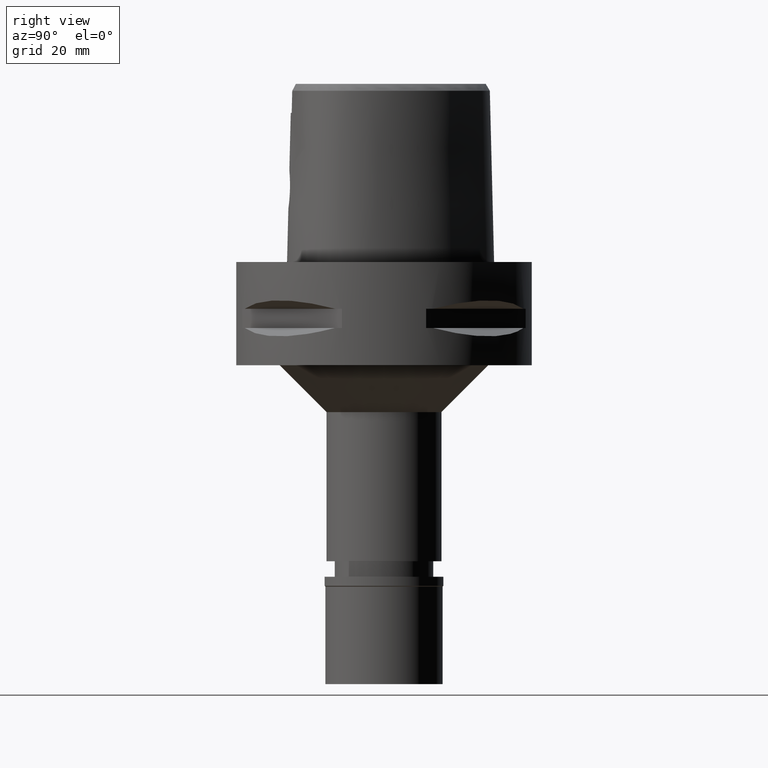
[diagram: clean part render]
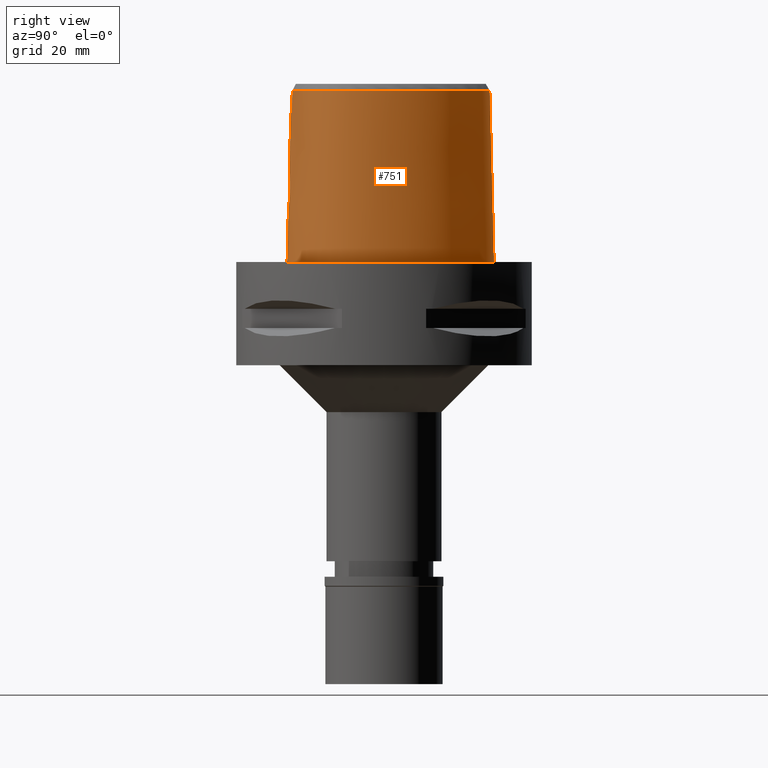
[diagram: same view with one face highlighted and labeled with its STEP entity id]
A machine part, right view. The second image highlights one B-rep face of the part: STEP entity #751.
In plain terms, the highlighted face is a freeform B-spline surface patch.
Its self-contained STEP definition (entity closure, byte-faithful):
#6 = CARTESIAN_POINT ( 'NONE',  ( 3.560427919826270049, -20.05783566392383932, 17.44838165235804439 ) ) ;
#7 = LINE ( 'NONE', #360, #1698 ) ;
#14 = CARTESIAN_POINT ( 'NONE',  ( 7.580410840576000453, 21.33037926361999936, -0.7304377127015999616 ) ) ;
#51 = B_SPLINE_CURVE_WITH_KNOTS ( 'NONE', 3,
 ( #609, #1398, #2149, #3215 ),
 .UNSPECIFIED., .F., .F.,
 ( 4, 4 ),
 ( 0.0000000000000000000, 1.000000000000000000 ),
 .UNSPECIFIED. ) ;
#56 = CARTESIAN_POINT ( 'NONE',  ( 3.671249151389730514, -19.60525176641679579, 34.94790639287000289 ) ) ;
#95 = VERTEX_POINT ( 'NONE', #398 ) ;
#138 = CARTESIAN_POINT ( 'NONE',  ( 18.90964962508163438, -12.28759713487269778, 36.52186680739951896 ) ) ;
#140 = CARTESIAN_POINT ( 'NONE',  ( 3.685510676559464294, -20.13532576923010353, 13.82052167447190349 ) ) ;
#172 = CARTESIAN_POINT ( 'NONE',  ( 1.318290243116415628, -20.35869268791108766, 11.66949536656400177 ) ) ;
#174 = CARTESIAN_POINT ( 'NONE',  ( 11.13012655352999936, -18.61140115486000468, 11.93048264079000020 ) ) ;
#196 = CARTESIAN_POINT ( 'NONE',  ( 14.52531262987000105, -16.95413747670999882, 11.93048264079000020 ) ) ;
#216 = CARTESIAN_POINT ( 'NONE',  ( 1.430622834923569009, -20.35322177505222996, 11.71082097673825473 ) ) ;
#245 = CARTESIAN_POINT ( 'NONE',  ( -0.4479923888923000308, -20.05810137359999956, 24.59140299429000009 ) ) ;
#279 = CARTESIAN_POINT ( 'NONE',  ( 2.113823673617677201, -20.67500000926077774, -3.706362569557297868E-07 ) ) ;
#297 = CARTESIAN_POINT ( 'NONE',  ( 10.55288405166999866, 18.94467586674999993, 11.93048264079000020 ) ) ;
#311 = CARTESIAN_POINT ( 'NONE',  ( 3.266496055312035462, -20.07523753042037384, 17.89878909391755002 ) ) ;
#319 = CARTESIAN_POINT ( 'NONE',  ( 21.44619293644000280, -6.759806551348999548, 24.59140299429000009 ) ) ;
#335 = CARTESIAN_POINT ( 'NONE',  ( 3.829354060569667428, -20.04432063893699123, 16.82161065392138966 ) ) ;
#343 = CARTESIAN_POINT ( 'NONE',  ( 2.438150600889999797, 22.68791638106999997, 24.59140299429000009 ) ) ;
#359 = CARTESIAN_POINT ( 'NONE',  ( 2.773210120156945457, -20.10385260638505045, 18.45456291583422725 ) ) ;
#360 = CARTESIAN_POINT ( 'NONE',  ( -1.574543175628000215E-11, 22.56201468012000078, 36.52186680743999858 ) ) ;
#366 = CARTESIAN_POINT ( 'NONE',  ( 10.34823236464999852, 18.70095497535000106, 24.59140299429000009 ) ) ;
#381 = CARTESIAN_POINT ( 'NONE',  ( 2.964456596452333503, -20.09288885982151029, 18.25993572930340036 ) ) ;
#390 = CARTESIAN_POINT ( 'NONE',  ( 21.26836741570999578, -8.910752245590000342, 11.93048264079000020 ) ) ;
#391 = VERTEX_POINT ( 'NONE', #2877 ) ;
#398 = CARTESIAN_POINT ( 'NONE',  ( -1.131694550467999927E-11, -20.67499999999999716, 1.488068927338999721E-13 ) ) ;
#409 = CARTESIAN_POINT ( 'NONE',  ( 18.06826689333558278, 10.43171875465824172, -3.706362569557298398E-07 ) ) ;
#410 = CARTESIAN_POINT ( 'NONE',  ( 1.674887392356037674, -20.15534369453145658, 19.18759917927871328 ) ) ;
#439 = VERTEX_POINT ( 'NONE', #1823 ) ;
#485 = VECTOR ( 'NONE', #4844, 1000.000000000000114 ) ;
#493 = CARTESIAN_POINT ( 'NONE',  ( -0.7217521648208999885, 23.47150798779000169, -0.7304377127015999616 ) ) ;
#500 = CARTESIAN_POINT ( 'NONE',  ( 2.841971434592522439, -20.24465931093810767, 12.61455390699043555 ) ) ;
#522 = CARTESIAN_POINT ( 'NONE',  ( 2.041042029990999821E-08, -19.88004246002000031, 31.80000004972000127 ) ) ;
#545 = CARTESIAN_POINT ( 'NONE',  ( 1.945304712137773340, -20.32321433943016231, 11.93793242183191694 ) ) ;
#547 = EDGE_LOOP ( 'NONE', ( #2650, #1135, #4311, #4013, #1394, #2211, #3634, #1532 ) ) ;
#601 = CARTESIAN_POINT ( 'NONE',  ( 2.712480348882689629, -20.25796393994375677, 12.49227042327419923 ) ) ;
#603 = CARTESIAN_POINT ( 'NONE',  ( 16.38077685640000070, -14.94316451564000126, 37.25232334778000620 ) ) ;
#609 = CARTESIAN_POINT ( 'NONE',  ( 3.736696120837999402, -19.67778323291999953, 31.80000004972999861 ) ) ;
#619 = CARTESIAN_POINT ( 'NONE',  ( -1.574543175628000215E-11, 22.56201468012000078, 36.52186680743999858 ) ) ;
#622 = CARTESIAN_POINT ( 'NONE',  ( -0.6718836833844000767, -20.05378849219999893, 24.59140299429000009 ) ) ;
#647 = FACE_OUTER_BOUND ( 'NONE', #547, .T. ) ;
#654 = CARTESIAN_POINT ( 'NONE',  ( 20.93173253059621786, -10.60431641002068304, -3.706362569557298398E-07 ) ) ;
#690 = CARTESIAN_POINT ( 'NONE',  ( 4.050227064633540763, -20.04605717389221908, 15.75144511807544845 ) ) ;
#696 = CARTESIAN_POINT ( 'NONE',  ( 21.05621899388000173, -0.4440251798498000002, 37.25232334778000620 ) ) ;
#713 = CARTESIAN_POINT ( 'NONE',  ( 3.080945359576436449, -20.08613096161498035, 18.12987642075779604 ) ) ;
#719 = CARTESIAN_POINT ( 'NONE',  ( 3.637738219117000238, -19.56971420299000286, 36.52185956443999970 ) ) ;
#723 = CARTESIAN_POINT ( 'NONE',  ( 17.88993648361000055, -13.52675013630999779, 37.25232334778000620 ) ) ;
#745 = CARTESIAN_POINT ( 'NONE',  ( 6.839695464753724994E-09, -20.08420636276293436, 23.63333344114103340 ) ) ;
#750 = CARTESIAN_POINT ( 'NONE',  ( 17.25769845519000256, 9.963736500069000357, 37.25232334778000620 ) ) ;
#751 = ADVANCED_FACE ( 'NONE', ( #647 ), #2102, .T. ) ;
#771 = CARTESIAN_POINT ( 'NONE',  ( 19.81622822285000041, -11.44090469762000062, 24.59140299429000009 ) ) ;
#788 = CARTESIAN_POINT ( 'NONE',  ( 2.520914726587768939, -20.11734872537601859, 18.67047284167710330 ) ) ;
#881 = CARTESIAN_POINT ( 'NONE',  ( 1.486612401983323561, -20.35034482949713563, 11.73264004643172065 ) ) ;
#904 = CARTESIAN_POINT ( 'NONE',  ( 20.09619608768714727, -10.23243839430306323, 36.52186680739951896 ) ) ;
#908 = CARTESIAN_POINT ( 'NONE',  ( 3.643280868489505053, -20.14206358275131947, 13.72887037703092261 ) ) ;
#931 = CARTESIAN_POINT ( 'NONE',  ( 21.32871516739908202, -4.105831245034556432, 36.52186680739951896 ) ) ;
#958 = CARTESIAN_POINT ( 'NONE',  ( 1.886855603313999818, -20.71358919621999917, -0.7304377127015999616 ) ) ;
#977 = EDGE_CURVE ( 'NONE', #2526, #3154, #3052, .T. ) ;
#1002 = EDGE_CURVE ( 'NONE', #1686, #391, #7, .T. ) ;
#1011 = CARTESIAN_POINT ( 'NONE',  ( 18.58171406647000268, -14.18198046606999974, -0.7304377127015999616 ) ) ;
#1029 = VERTEX_POINT ( 'NONE', #1054 ) ;
#1038 = CARTESIAN_POINT ( 'NONE',  ( 6.341471020858127083, -20.29812500917696383, -3.706362569557298927E-07 ) ) ;
#1054 = CARTESIAN_POINT ( 'NONE',  ( 3.736696120837999402, -19.67778323291999953, 31.80000004972999861 ) ) ;
#1081 = CARTESIAN_POINT ( 'NONE',  ( 17.80867307433000235, 10.28184208172000069, 11.93048264079000020 ) ) ;
#1097 = CARTESIAN_POINT ( 'NONE',  ( 1.855918559647546484, -20.14851752197398582, 19.10034405336992691 ) ) ;
#1104 = CARTESIAN_POINT ( 'NONE',  ( 13.69241970466999980, 15.03666384383999954, 37.25232334778000620 ) ) ;
#1130 = CARTESIAN_POINT ( 'NONE',  ( 7.099337716889999150, 20.50831380533999848, 37.25232334778000620 ) ) ;
#1135 = ORIENTED_EDGE ( 'NONE', *, *, #4826, .T. ) ;
#1157 = CARTESIAN_POINT ( 'NONE',  ( 10.14358067763999927, 18.45723408394000131, 37.25232334778000620 ) ) ;
#1173 = CARTESIAN_POINT ( 'NONE',  ( 4.044827519994394827, -20.05860776861394612, 15.27926280281562477 ) ) ;
#1179 = CARTESIAN_POINT ( 'NONE',  ( 20.07948491964999960, -10.22500063852000096, 37.25232334778000620 ) ) ;
#1277 = CARTESIAN_POINT ( 'NONE',  ( 2.564517728860519430, 23.29328125912352121, -3.706362569557298398E-07 ) ) ;
#1280 = B_SPLINE_CURVE_WITH_KNOTS ( 'NONE', 3,
 ( #3233, #1659, #2117, #2088, #3609, #3633, #172, #216, #881, #4783, #1764, #2400, #1362, #545, #2885, #2501, #4038, #4312, #601, #2141, #3927, #1716, #500, #1339, #2858, #2038, #3556, #3182, #4708, #2809, #4340, #908, #140, #3206, #2249, #2665, #3841, #1543, #2690, #4200, #1173, #1924, #4126, #2611, #690, #3372, #1880, #2226, #1516, #335, #4870, #2639, #3397, #3741, #2272, #1902, #6, #4577, #311, #4150, #713, #1854, #381, #3047, #3074, #4224, #2998, #359, #1953, #788, #4898, #4531, #1477, #2317, #4598, #1097, #3769, #410, #3790, #4921, #1495, #3439, #3019 ),
 .UNSPECIFIED., .F., .F.,
 ( 4, 2, 2, 1, 1, 1, 2, 2, 2, 2, 2, 1, 1, 2, 2, 2, 2, 2, 1, 2, 2, 2, 2, 1, 2, 2, 2, 2, 1, 1, 1, 2, 2, 2, 2, 2, 1, 1, 2, 2, 2, 2, 2, 2, 1, 2, 2, 4 ),
 ( 0.0000000000000000000, 0.06250000000000779932, 0.09375000000001161571, 0.1093750000000135170, 0.1171875000000144884, 0.1210937500000149603, 0.1230468750000151407, 0.1250000000000153211, 0.1875000000000161815, 0.2187500000000164868, 0.2343750000000167644, 0.2421875000000169309, 0.2460937500000169864, 0.2480468750000170419, 0.2500000000000170974, 0.2812500000000201505, 0.3125000000000232037, 0.3437500000000263123, 0.3593750000000279776, 0.3671875000000288103, 0.3750000000000296985, 0.4375000000000356382, 0.4687500000000384692, 0.4843750000000396350, 0.4921875000000401901, 0.5000000000000407452, 0.5625000000000482947, 0.5937500000000516254, 0.6093750000000534017, 0.6171875000000542899, 0.6210937500000542899, 0.6230468750000542899, 0.6250000000000542899, 0.6875000000000549560, 0.7187500000000552891, 0.7343750000000556222, 0.7421875000000560663, 0.7460937500000563993, 0.7480468750000565104, 0.7500000000000566214, 0.7812500000000502931, 0.7968750000000469624, 0.8125000000000435207, 0.8437500000000365263, 0.8593750000000333067, 0.8671875000000316414, 0.8750000000000298650, 1.000000000000000000 ),
 .UNSPECIFIED. ) ;
#1314 = CARTESIAN_POINT ( 'NONE',  ( 2.376843874104179744, 22.39422497744979168, 36.52186680739951896 ) ) ;
#1339 = CARTESIAN_POINT ( 'NONE',  ( 2.850410626714727780, -20.24376332189658001, 12.62289587933795865 ) ) ;
#1341 = CARTESIAN_POINT ( 'NONE',  ( -0.4561077449837999676, -20.69106755703000289, -0.7304377127015999616 ) ) ;
#1350 = CARTESIAN_POINT ( 'NONE',  ( -1.131694550467999927E-11, -20.67499999999999716, 1.488068927338999721E-13 ) ) ;
#1360 = CARTESIAN_POINT ( 'NONE',  ( 17.27359236348804572, 9.972912859139619002, 36.52186680739951896 ) ) ;
#1362 = CARTESIAN_POINT ( 'NONE',  ( 1.733127627898181533, -20.33705839681639205, 11.83376409685870456 ) ) ;
#1394 = ORIENTED_EDGE ( 'NONE', *, *, #977, .T. ) ;
#1398 = CARTESIAN_POINT ( 'NONE',  ( 2.503154195451056552, -19.81241979350802040, 31.80000012137771392 ) ) ;
#1418 = CARTESIAN_POINT ( 'NONE',  ( 19.64947366613950663, -12.82525391170535656, -3.706362569557298398E-07 ) ) ;
#1459 = CARTESIAN_POINT ( 'NONE',  ( 21.99640701676999655, -0.2778990160813999966, -0.7304377127015999616 ) ) ;
#1477 = CARTESIAN_POINT ( 'NONE',  ( 2.306638781912662139, -20.12825436215192809, 18.82958810261080629 ) ) ;
#1482 = CARTESIAN_POINT ( 'NONE',  ( 21.68301100913999946, -0.3332744040041999978, 11.93048264079000020 ) ) ;
#1495 = CARTESIAN_POINT ( 'NONE',  ( 1.027689602972268412, -20.17741232845817478, 19.45818698251686740 ) ) ;
#1496 = CARTESIAN_POINT ( 'NONE',  ( 0.0000000000000000000, -20.18628283968999781, 19.55000000000000071 ) ) ;
#1502 = CARTESIAN_POINT ( 'NONE',  ( 18.89485275539000142, -12.27684371673000108, 37.25232334778000620 ) ) ;
#1516 = CARTESIAN_POINT ( 'NONE',  ( 3.860874127255712107, -20.04326357303169104, 16.72502838322736807 ) ) ;
#1519 = CARTESIAN_POINT ( 'NONE',  ( 6.819707265817331304E-09, -19.98212988583487970, 27.71666688228189912 ) ) ;
#1525 = CARTESIAN_POINT ( 'NONE',  ( 21.31039820760999959, -4.105938497754999084, 37.25232334778000620 ) ) ;
#1532 = ORIENTED_EDGE ( 'NONE', *, *, #3021, .T. ) ;
#1543 = CARTESIAN_POINT ( 'NONE',  ( 4.002035053400216036, -20.07414867880186193, 14.86451737245610794 ) ) ;
#1551 = CARTESIAN_POINT ( 'NONE',  ( 7.259695424784999851, 20.78233562476000174, 24.59140299429000009 ) ) ;
#1568 = CARTESIAN_POINT ( 'NONE',  ( 5.098437020742769832, 22.52602539926908065, -3.706362569557298398E-07 ) ) ;
#1578 = EDGE_CURVE ( 'NONE', #2297, #95, #3318, .T. ) ;
#1654 = CARTESIAN_POINT ( 'NONE',  ( -1.574543175628000215E-11, 22.56201468012000078, 36.52186680743999858 ) ) ;
#1659 = CARTESIAN_POINT ( 'NONE',  ( 0.2516474774444192319, -20.38876923348000503, 11.44999999999999751 ) ) ;
#1679 = CARTESIAN_POINT ( 'NONE',  ( -0.6834384062705000096, 22.83968690454999972, 24.59140299429000009 ) ) ;
#1681 = CARTESIAN_POINT ( 'NONE',  ( 17.90324024157230909, -13.53935104436580872, 36.52186680739951896 ) ) ;
#1686 = VERTEX_POINT ( 'NONE', #1654 ) ;
#1698 = VECTOR ( 'NONE', #4943, 1000.000000000000227 ) ;
#1716 = CARTESIAN_POINT ( 'NONE',  ( 2.827631256043765529, -20.24617244783797076, 12.60049965156953000 ) ) ;
#1737 = B_SPLINE_CURVE_WITH_KNOTS ( 'NONE', 3,
 ( #619, #2059, #1314, #2427, #2833, #4782, #3180, #1360, #2521, #2882, #931, #4411, #4336, #904, #3577, #138, #1681, #4733, #4360, #1830, #4535, #3349, #719 ),
 .UNSPECIFIED., .F., .F.,
 ( 4, 1, 1, 1, 1, 1, 1, 1, 1, 1, 1, 1, 1, 1, 1, 1, 1, 1, 1, 1, 4 ),
 ( 0.0000000000000000000, 0.04382683003322301180, 0.08765366006602515192, 0.1314804900989326175, 0.1753073201318401109, 0.2629609801974445160, 0.3506146402631542536, 0.4382683003288638246, 0.5259219603945736177, 0.5697487904274809445, 0.6135756204602832442, 0.6574024504930854329, 0.6793158655094865273, 0.7012292805259929818, 0.7231426955423939651, 0.7450561105587950594, 0.7888829405917024973, 0.8327097706246100461, 0.8765366006573070967, 0.9641902607230797839, 1.000000000000000000 ),
 .UNSPECIFIED. ) ;
#1764 = CARTESIAN_POINT ( 'NONE',  ( 1.526526126156138474, -20.34823259897835257, 11.74869461639786472 ) ) ;
#1766 = CARTESIAN_POINT ( 'NONE',  ( 6.232237578930000410, -19.68961176701999705, 24.59140299429000009 ) ) ;
#1819 = CARTESIAN_POINT ( 'NONE',  ( 11.23259757045801166, -18.89324219624920786, -3.706362569557298398E-07 ) ) ;
#1823 = CARTESIAN_POINT ( 'NONE',  ( 3.637738219117000238, -19.56971420299000286, 36.52185956443999970 ) ) ;
#1830 = CARTESIAN_POINT ( 'NONE',  ( 10.91891095220704244, -18.03046396093424164, 36.52186680739951896 ) ) ;
#1832 = CARTESIAN_POINT ( 'NONE',  ( 18.12052901122999771, -13.74516024622999844, 24.59140299429000009 ) ) ;
#1854 = CARTESIAN_POINT ( 'NONE',  ( 3.004003988406161341, -20.09059968545356156, 18.21660700358521368 ) ) ;
#1862 = CARTESIAN_POINT ( 'NONE',  ( -0.4812391254439000177, 23.48607176370000005, -0.7304377127015999616 ) ) ;
#1880 = CARTESIAN_POINT ( 'NONE',  ( 3.950640931117192167, -20.04134373120366064, 16.40136709842777307 ) ) ;
#1888 = CARTESIAN_POINT ( 'NONE',  ( 22.26285556620999984, -4.100361500044000351, -0.7304377127015999616 ) ) ;
#1902 = CARTESIAN_POINT ( 'NONE',  ( 3.664974095131715792, -20.05176572821117631, 17.23584209079355034 ) ) ;
#1907 = CARTESIAN_POINT ( 'NONE',  ( 14.42198652065999909, 15.65278600306999834, -0.7304377127015999616 ) ) ;
#1924 = CARTESIAN_POINT ( 'NONE',  ( 4.048119304271369678, -20.05584858367399193, 15.37274962943441459 ) ) ;
#1932 = CARTESIAN_POINT ( 'NONE',  ( 4.868968413250999383, 21.95285535513000141, 24.59140299429000009 ) ) ;
#1951 = CARTESIAN_POINT ( 'NONE',  ( 5.792621513410000046E-11, 23.47499999999000053, 1.460313351723999876E-13 ) ) ;
#1953 = CARTESIAN_POINT ( 'NONE',  ( 2.674783194802311304, -20.10923909173701674, 18.54395651331615724 ) ) ;
#1974 = CARTESIAN_POINT ( 'NONE',  ( 0.0000000000000000000, -20.18628283968999781, 19.55000000000000071 ) ) ;
#1979 = CARTESIAN_POINT ( 'NONE',  ( -0.6642815269952999646, 22.52377636293000052, 37.25232334778000620 ) ) ;
#2038 = CARTESIAN_POINT ( 'NONE',  ( 3.039944293244753126, -20.22303436384430952, 12.82065915368009890 ) ) ;
#2049 = B_SPLINE_CURVE_WITH_KNOTS ( 'NONE', 3,
 ( #1350, #279, #1038, #1819, #2936, #3335, #2199, #1418, #4466, #654, #2553, #4092, #3708, #3462, #4249, #409, #3942, #4327, #3093, #1568, #1277, #3168, #1951 ),
 .UNSPECIFIED., .F., .F.,
 ( 4, 1, 1, 1, 1, 1, 1, 1, 1, 1, 1, 1, 1, 1, 1, 1, 1, 1, 1, 1, 4 ),
 ( 0.0000000000000000000, 0.08333333333344000726, 0.1666666666668000230, 0.2083333333333000081, 0.2500000000000000000, 0.2916666666666999919, 0.3125000000000000000, 0.3333333333333000081, 0.3541666666666999919, 0.3750000000000000000, 0.4166666666666000163, 0.4583333333332000326, 0.4999999999998999689, 0.5833333333332000326, 0.6666666666664999852, 0.7499999999998000488, 0.8333333333329999704, 0.8749999999997000177, 0.9166666666664000651, 0.9583333333329999704, 1.000000000000000000 ),
 .UNSPECIFIED. ) ;
#2059 = CARTESIAN_POINT ( 'NONE',  ( 0.7901461619525469438, 22.56201467849633246, 36.52186680739951896 ) ) ;
#2088 = CARTESIAN_POINT ( 'NONE',  ( 0.8978660413949249852, -20.37497067493941572, 11.54857924112956624 ) ) ;
#2102 = B_SPLINE_SURFACE_WITH_KNOTS ( 'NONE', 3, 3, ( 
 ( #4487, #3656, #622, #2478 ),
 ( #1341, #2119, #245, #3309 ),
 ( #958, #2574, #4812, #4833 ),
 ( #3610, #2887, #1766, #4111 ),
 ( #3676, #174, #2859, #3635 ),
 ( #2913, #196, #3258, #4438 ),
 ( #2503, #4785, #4414, #603 ),
 ( #1011, #2166, #1832, #723 ),
 ( #3422, #3816, #4207, #1502 ),
 ( #4926, #3079, #771, #2253 ),
 ( #4604, #4538, #4185, #1179 ),
 ( #4906, #390, #3353, #2210 ),
 ( #2671, #3446, #319, #2648 ),
 ( #1888, #2298, #4878, #1525 ),
 ( #1459, #1482, #2982, #696 ),
 ( #4514, #3795, #2616, #3725 ),
 ( #4160, #1081, #4561, #750 ),
 ( #1907, #2597, #3003, #1104 ),
 ( #2276, #297, #366, #1157 ),
 ( #14, #4948, #1551, #1130 ),
 ( #4134, #2230, #1932, #3775 ),
 ( #2696, #3056, #343, #3404 ),
 ( #3027, #4230, #4583, #3747 ),
 ( #1862, #3379, #3552, #3153 ),
 ( #493, #3099, #1679, #1979 ) ),
 .UNSPECIFIED., .F., .F., .F.,
 ( 4, 1, 1, 1, 1, 1, 1, 1, 1, 1, 1, 1, 1, 1, 1, 1, 1, 1, 1, 1, 1, 1, 4 ),
 ( 4, 4 ),
 ( -0.008985960173604000401, 0.0000000000000000000, 0.08333333333344000726, 0.1666666666668000230, 0.2083333333333000081, 0.2500000000000000000, 0.2916666666666999919, 0.3125000000000000000, 0.3333333333333000081, 0.3541666666666999919, 0.3750000000000000000, 0.4166666666666000163, 0.4583333333332000326, 0.4999999999998999689, 0.5833333333332000326, 0.6666666666664999852, 0.7499999999998000488, 0.8333333333329999704, 0.8749999999997000177, 0.9166666666664000651, 0.9583333333329999704, 1.000000000000000000, 1.011710456763000199 ),
 ( 3.314704413725999748E-10, 0.9999999830951000757 ),
 .UNSPECIFIED. ) ;
#2117 = CARTESIAN_POINT ( 'NONE',  ( 0.5094443580571369479, -20.38531959384485148, 11.47352210812809226 ) ) ;
#2119 = CARTESIAN_POINT ( 'NONE',  ( -0.4520500669380000391, -20.37458446531000078, 11.93048264079000020 ) ) ;
#2141 = CARTESIAN_POINT ( 'NONE',  ( 2.755765615597805862, -20.25363130051434624, 12.53166855696492377 ) ) ;
#2149 = CARTESIAN_POINT ( 'NONE',  ( 1.251533272180900491, -19.88005341395322034, 31.80000012137771392 ) ) ;
#2166 = CARTESIAN_POINT ( 'NONE',  ( 18.35112153885000197, -13.96357035614999909, 11.93048264079000020 ) ) ;
#2199 = CARTESIAN_POINT ( 'NONE',  ( 18.56841065816537295, -14.16937988919912783, -3.706362569557298398E-07 ) ) ;
#2210 = CARTESIAN_POINT ( 'NONE',  ( 20.65947746028000154, -8.729764345923998192, 37.25232334778000620 ) ) ;
#2211 = ORIENTED_EDGE ( 'NONE', *, *, #2595, .F. ) ;
#2215 = CARTESIAN_POINT ( 'NONE',  ( -1.411580633884000040E-12, -20.38876923348000147, 11.44999999999999929 ) ) ;
#2226 = CARTESIAN_POINT ( 'NONE',  ( 3.918815742022559778, -20.04168401161763668, 16.53128921500082527 ) ) ;
#2227 = CARTESIAN_POINT ( 'NONE',  ( 2.041042029990999821E-08, -19.88004246002000031, 31.80000004972000127 ) ) ;
#2230 = CARTESIAN_POINT ( 'NONE',  ( 4.987110664832000495, 22.24795279915000279, 11.93048264079000020 ) ) ;
#2249 = CARTESIAN_POINT ( 'NONE',  ( 3.725635460763917273, -20.12877944838376010, 13.91147490174817847 ) ) ;
#2253 = CARTESIAN_POINT ( 'NONE',  ( 19.54161171135999808, -11.28235478018000038, 37.25232334778000620 ) ) ;
#2272 = CARTESIAN_POINT ( 'NONE',  ( 3.746243339493119162, -20.04791785474846222, 17.03889652797241183 ) ) ;
#2276 = CARTESIAN_POINT ( 'NONE',  ( 10.75753573869000057, 19.18839675815999968, -0.7304377127015999616 ) ) ;
#2297 = VERTEX_POINT ( 'NONE', #2215 ) ;
#2298 = CARTESIAN_POINT ( 'NONE',  ( 21.94536978001000094, -4.102220499280999633, 11.93048264079000020 ) ) ;
#2317 = CARTESIAN_POINT ( 'NONE',  ( 2.144305683767859350, -20.13626505368563357, 18.93822784987334629 ) ) ;
#2370 = CARTESIAN_POINT ( 'NONE',  ( 3.704239288984441103, -19.64128042389065598, 33.37395322129999897 ) ) ;
#2400 = CARTESIAN_POINT ( 'NONE',  ( 1.536513166970382205, -20.34769590664082273, 11.75277852158364666 ) ) ;
#2427 = CARTESIAN_POINT ( 'NONE',  ( 4.757642236485510878, 21.67478320248027046, 36.52186680739951896 ) ) ;
#2478 = CARTESIAN_POINT ( 'NONE',  ( -0.6657939532555999795, -19.73734215593000130, 37.25232334778000620 ) ) ;
#2501 = CARTESIAN_POINT ( 'NONE',  ( 2.395039263044265176, -20.28758620788289591, 12.23076825048378069 ) ) ;
#2503 = CARTESIAN_POINT ( 'NONE',  ( 16.97022731160999953, -15.69280483180000196, -0.7304377127015999616 ) ) ;
#2521 = CARTESIAN_POINT ( 'NONE',  ( 19.88562079789207004, 4.345879946636585167, 36.52186680739951896 ) ) ;
#2526 = VERTEX_POINT ( 'NONE', #522 ) ;
#2553 = CARTESIAN_POINT ( 'NONE',  ( 21.55524826901233837, -8.996025393274063475, -3.706362569557298398E-07 ) ) ;
#2574 = CARTESIAN_POINT ( 'NONE',  ( 1.870063861600999910, -20.39691450398999706, 11.93048264079000020 ) ) ;
#2595 = EDGE_CURVE ( 'NONE', #2297, #3154, #1280, .T. ) ;
#2597 = CARTESIAN_POINT ( 'NONE',  ( 14.17879758199999962, 15.44741194998999845, 11.93048264079000020 ) ) ;
#2611 = CARTESIAN_POINT ( 'NONE',  ( 4.049969785699616409, -20.05331009890886307, 15.46448438781077073 ) ) ;
#2616 = CARTESIAN_POINT ( 'NONE',  ( 20.16779732427999861, 4.447573639342000007, 24.59140299429000009 ) ) ;
#2639 = CARTESIAN_POINT ( 'NONE',  ( 3.766305380331977926, -20.04698906519095303, 16.98928058779668504 ) ) ;
#2648 = CARTESIAN_POINT ( 'NONE',  ( 21.13154875869999927, -6.714587059220999521, 37.25232334778000620 ) ) ;
#2650 = ORIENTED_EDGE ( 'NONE', *, *, #1002, .F. ) ;
#2665 = CARTESIAN_POINT ( 'NONE',  ( 3.848905249512932780, -20.10802803500427771, 14.20778905203764708 ) ) ;
#2671 = CARTESIAN_POINT ( 'NONE',  ( 22.07548129194000097, -6.850245535603000313, -0.7304377127015999616 ) ) ;
#2690 = CARTESIAN_POINT ( 'NONE',  ( 4.020256713815440364, -20.06874923333347738, 14.99366931076525233 ) ) ;
#2696 = CARTESIAN_POINT ( 'NONE',  ( 2.568271205948000180, 23.31126238471999912, -0.7304377127015999616 ) ) ;
#2809 = CARTESIAN_POINT ( 'NONE',  ( 3.503399607296684426, -20.16301088028431110, 13.46373199589919167 ) ) ;
#2833 = CARTESIAN_POINT ( 'NONE',  ( 7.108589361577901222, 20.52412316395011516, 36.52186680739951896 ) ) ;
#2858 = CARTESIAN_POINT ( 'NONE',  ( 2.950423299620006823, -20.23309605272527989, 12.72238753065452599 ) ) ;
#2859 = CARTESIAN_POINT ( 'NONE',  ( 11.02138180424999980, -18.31230454878999936, 24.59140299429000009 ) ) ;
#2877 = CARTESIAN_POINT ( 'NONE',  ( 5.792621513410000046E-11, 23.47499999999000053, 1.460313351723999876E-13 ) ) ;
#2882 = CARTESIAN_POINT ( 'NONE',  ( 21.07429999882363703, -0.4408303635840800094, 36.52186680739951896 ) ) ;
#2885 = CARTESIAN_POINT ( 'NONE',  ( 2.280553278468464118, -20.29715490883428330, 12.15050963463213485 ) ) ;
#2887 = CARTESIAN_POINT ( 'NONE',  ( 6.288476577886999763, -20.00290570876000018, 11.93048264079000020 ) ) ;
#2913 = CARTESIAN_POINT ( 'NONE',  ( 14.68244497159999895, -17.23001773102000200, -0.7304377127015999616 ) ) ;
#2936 = CARTESIAN_POINT ( 'NONE',  ( 14.67337964879238399, -17.21410157057825430, -3.706362569557298398E-07 ) ) ;
#2940 = EDGE_CURVE ( 'NONE', #1029, #2526, #51, .T. ) ;
#2942 = CARTESIAN_POINT ( 'NONE',  ( -1.411580633884000040E-12, -20.38876923348000147, 11.44999999999999929 ) ) ;
#2982 = CARTESIAN_POINT ( 'NONE',  ( 21.36961500151000237, -0.3886497919269999990, 24.59140299429000009 ) ) ;
#2998 = CARTESIAN_POINT ( 'NONE',  ( 2.872871899607042145, -20.09815064883976987, 18.35467615336887448 ) ) ;
#3003 = CARTESIAN_POINT ( 'NONE',  ( 13.93560864332999927, 15.24203789691000033, 24.59140299429000009 ) ) ;
#3019 = CARTESIAN_POINT ( 'NONE',  ( 0.0000000000000000000, -20.18628283968999781, 19.55000000000000071 ) ) ;
#3021 = EDGE_CURVE ( 'NONE', #95, #391, #2049, .T. ) ;
#3027 = CARTESIAN_POINT ( 'NONE',  ( 0.6155340740835999469, 23.51883497837000192, -0.7304377127015999616 ) ) ;
#3047 = CARTESIAN_POINT ( 'NONE',  ( 2.916385679761511529, -20.09565548503593746, 18.31031963169740706 ) ) ;
#3052 = B_SPLINE_CURVE_WITH_KNOTS ( 'NONE', 3,
 ( #2227, #1519, #745, #1496 ),
 .UNSPECIFIED., .F., .F.,
 ( 4, 4 ),
 ( 0.0000000000000000000, 1.000000000000000000 ),
 .UNSPECIFIED. ) ;
#3056 = CARTESIAN_POINT ( 'NONE',  ( 2.503210903418999767, 22.99958938290000177, 11.93048264079000020 ) ) ;
#3074 = CARTESIAN_POINT ( 'NONE',  ( 2.895364966236098958, -20.09686173622466043, 18.33186563308976602 ) ) ;
#3079 = CARTESIAN_POINT ( 'NONE',  ( 20.09084473435000007, -11.59945461505999909, 11.93048264079000020 ) ) ;
#3093 = CARTESIAN_POINT ( 'NONE',  ( 7.571159439045547224, 21.31457032052076173, -3.706362569557298398E-07 ) ) ;
#3099 = CARTESIAN_POINT ( 'NONE',  ( -0.7025952855457000545, 23.15559744616999538, 11.93048264079000020 ) ) ;
#3100 = CARTESIAN_POINT ( 'NONE',  ( 3.637738219117000238, -19.56971420299000286, 36.52185956443999970 ) ) ;
#3153 = CARTESIAN_POINT ( 'NONE',  ( -0.4431573377790999912, 22.53713867047000008, 37.25232334778000620 ) ) ;
#3154 = VERTEX_POINT ( 'NONE', #1974 ) ;
#3155 = CARTESIAN_POINT ( 'NONE',  ( 3.736696120837999402, -19.67778323291999953, 31.80000004972999861 ) ) ;
#3168 = CARTESIAN_POINT ( 'NONE',  ( 0.8548392429650701896, 23.47500000926667241, -3.706362569557298398E-07 ) ) ;
#3180 = CARTESIAN_POINT ( 'NONE',  ( 13.70645019738560677, 15.04851265230740509, 36.52186680739951896 ) ) ;
#3182 = CARTESIAN_POINT ( 'NONE',  ( 3.289550543119732051, -20.19259649272058610, 13.13390288946961704 ) ) ;
#3206 = CARTESIAN_POINT ( 'NONE',  ( 3.712956583703073132, -20.13087152724002138, 13.88210327879420625 ) ) ;
#3215 = CARTESIAN_POINT ( 'NONE',  ( 2.041042029990999821E-08, -19.88004246002000031, 31.80000004972000127 ) ) ;
#3233 = CARTESIAN_POINT ( 'NONE',  ( -1.411580633884000040E-12, -20.38876923348000147, 11.44999999999999929 ) ) ;
#3258 = CARTESIAN_POINT ( 'NONE',  ( 14.36818028813000048, -16.67825722241000008, 24.59140299429000009 ) ) ;
#3286 = B_SPLINE_CURVE_WITH_KNOTS ( 'NONE', 3,
 ( #3155, #2370, #56, #3100 ),
 .UNSPECIFIED., .F., .F.,
 ( 4, 4 ),
 ( 0.0000000000000000000, 1.000000000000000000 ),
 .UNSPECIFIED. ) ;
#3309 = CARTESIAN_POINT ( 'NONE',  ( -0.4439347108466000225, -19.74161828188000101, 37.25232334778000620 ) ) ;
#3318 = LINE ( 'NONE', #2942, #485 ) ;
#3335 = CARTESIAN_POINT ( 'NONE',  ( 16.95889173168474784, -15.67838867918921686, -3.706362569557298398E-07 ) ) ;
#3349 = CARTESIAN_POINT ( 'NONE',  ( 4.467522181836104167, -19.48130276147438522, 36.52186680739951896 ) ) ;
#3353 = CARTESIAN_POINT ( 'NONE',  ( 20.96392243800000088, -8.820258295757001932, 24.59140299429000009 ) ) ;
#3372 = CARTESIAN_POINT ( 'NONE',  ( 4.026288377238904204, -20.04246117154787754, 16.01147585895854419 ) ) ;
#3379 = CARTESIAN_POINT ( 'NONE',  ( -0.4685451962222999533, 23.16976073262000213, 11.93048264079000020 ) ) ;
#3397 = CARTESIAN_POINT ( 'NONE',  ( 3.756732854251331855, -20.04742873757864530, 17.01311984628703300 ) ) ;
#3404 = CARTESIAN_POINT ( 'NONE',  ( 2.373090298361999917, 22.37624337924999907, 37.25232334778000620 ) ) ;
#3422 = CARTESIAN_POINT ( 'NONE',  ( 19.66427014693000075, -12.83600704722000074, -0.7304377127015999616 ) ) ;
#3439 = CARTESIAN_POINT ( 'NONE',  ( 0.4946161667393146333, -20.18628283968999426, 19.54999999999999361 ) ) ;
#3446 = CARTESIAN_POINT ( 'NONE',  ( 21.76083711419000011, -6.805026043476000375, 11.93048264079000020 ) ) ;
#3462 = CARTESIAN_POINT ( 'NONE',  ( 21.97832648704262937, -0.2810937483789625602, -3.706362569557298398E-07 ) ) ;
#3552 = CARTESIAN_POINT ( 'NONE',  ( -0.4558512670007000001, 22.85344970154000066, 24.59140299429000009 ) ) ;
#3556 = CARTESIAN_POINT ( 'NONE',  ( 3.208904454698072950, -20.20286717381936370, 13.02551805878312408 ) ) ;
#3577 = CARTESIAN_POINT ( 'NONE',  ( 19.55745538001234607, -11.29150212657641816, 36.52186680739951896 ) ) ;
#3609 = CARTESIAN_POINT ( 'NONE',  ( 1.027607996733898910, -20.37065862539548888, 11.58021460147264037 ) ) ;
#3610 = CARTESIAN_POINT ( 'NONE',  ( 6.344715576844000005, -20.31619965048999887, -0.7304377127015999616 ) ) ;
#3633 = CARTESIAN_POINT ( 'NONE',  ( 1.221514972066057192, -20.36289693621641561, 11.63801215507047893 ) ) ;
#3634 = ORIENTED_EDGE ( 'NONE', *, *, #1578, .T. ) ;
#3635 = CARTESIAN_POINT ( 'NONE',  ( 10.91263705495999936, -18.01320794273000203, 37.25232334778000620 ) ) ;
#3656 = CARTESIAN_POINT ( 'NONE',  ( -0.6779734135132999828, -20.37023482847000011, 11.93048264079000020 ) ) ;
#3676 = CARTESIAN_POINT ( 'NONE',  ( 11.23887130281000069, -18.91049776091999846, -0.7304377127015999616 ) ) ;
#3708 = CARTESIAN_POINT ( 'NONE',  ( 22.24453908783870304, -4.100468749945560987, -3.706362569557298398E-07 ) ) ;
#3725 = CARTESIAN_POINT ( 'NONE',  ( 19.86834421145999841, 4.339653631874999640, 37.25232334778000620 ) ) ;
#3741 = CARTESIAN_POINT ( 'NONE',  ( 3.750297218118296971, -20.04772742094540661, 17.02900104094576150 ) ) ;
#3747 = CARTESIAN_POINT ( 'NONE',  ( 0.5662264546092999895, 22.56729407171000190, 37.25232334778000620 ) ) ;
#3769 = CARTESIAN_POINT ( 'NONE',  ( 1.766538253430120387, -20.15200785949030404, 19.14550779507278477 ) ) ;
#3775 = CARTESIAN_POINT ( 'NONE',  ( 4.750826161670000047, 21.65775791111000004, 37.25232334778000620 ) ) ;
#3790 = CARTESIAN_POINT ( 'NONE',  ( 1.613296392723216455, -20.15753325067551316, 19.21495763546725755 ) ) ;
#3795 = CARTESIAN_POINT ( 'NONE',  ( 20.46725043710000236, 4.555493646809999575, 11.93048264079000020 ) ) ;
#3816 = CARTESIAN_POINT ( 'NONE',  ( 19.40779768309000275, -12.64961927039000145, 11.93048264079000020 ) ) ;
#3841 = CARTESIAN_POINT ( 'NONE',  ( 3.926727245695663004, -20.09264105816050261, 14.47345039470663508 ) ) ;
#3927 = CARTESIAN_POINT ( 'NONE',  ( 2.806103744119299304, -20.24843181462425079, 12.57955817521457220 ) ) ;
#3942 = CARTESIAN_POINT ( 'NONE',  ( 14.40795639670257167, 15.64093750601981725, -3.706362569557298398E-07 ) ) ;
#4013 = ORIENTED_EDGE ( 'NONE', *, *, #2940, .T. ) ;
#4038 = CARTESIAN_POINT ( 'NONE',  ( 2.567993387295244290, -20.27190982032668387, 12.36738012381010066 ) ) ;
#4092 = CARTESIAN_POINT ( 'NONE',  ( 22.05732875243455382, -6.847636720073275285, -3.706362569557298398E-07 ) ) ;
#4111 = CARTESIAN_POINT ( 'NONE',  ( 6.175998579972999281, -19.37631782528999835, 37.25232334778000620 ) ) ;
#4126 = CARTESIAN_POINT ( 'NONE',  ( 4.049593710241143008, -20.05410471217043167, 15.43478236128958692 ) ) ;
#4134 = CARTESIAN_POINT ( 'NONE',  ( 5.105252916414000808, 22.54305024317000061, -0.7304377127015999616 ) ) ;
#4150 = CARTESIAN_POINT ( 'NONE',  ( 3.129367442463513616, -20.08329797891901336, 18.07196049914575298 ) ) ;
#4160 = CARTESIAN_POINT ( 'NONE',  ( 18.08416038389999869, 10.44089487255000037, -0.7304377127015999616 ) ) ;
#4185 = CARTESIAN_POINT ( 'NONE',  ( 20.36913769957000042, -10.35391841578999994, 24.59140299429000009 ) ) ;
#4200 = CARTESIAN_POINT ( 'NONE',  ( 4.038201109932119337, -20.06179708660765826, 15.18453922794940247 ) ) ;
#4207 = CARTESIAN_POINT ( 'NONE',  ( 19.15132521924000031, -12.46323149356000037, 24.59140299429000009 ) ) ;
#4224 = CARTESIAN_POINT ( 'NONE',  ( 2.881257544100592316, -20.09767047138784690, 18.34621787924706382 ) ) ;
#4230 = CARTESIAN_POINT ( 'NONE',  ( 0.5990982009255000351, 23.20165467614999955, 11.93048264079000020 ) ) ;
#4249 = CARTESIAN_POINT ( 'NONE',  ( 20.74942741756196796, 4.657187503159310182, -3.706362569557298398E-07 ) ) ;
#4311 = ORIENTED_EDGE ( 'NONE', *, *, #4461, .F. ) ;
#4312 = CARTESIAN_POINT ( 'NONE',  ( 2.625841581211501019, -20.26646380178642914, 12.41561944800510098 ) ) ;
#4327 = CARTESIAN_POINT ( 'NONE',  ( 10.74572891658366913, 19.17433594463643587, -3.706362569557298398E-07 ) ) ;
#4336 = CARTESIAN_POINT ( 'NONE',  ( 20.67704204634108223, -8.734985285292925283, 36.52186680739951896 ) ) ;
#4340 = CARTESIAN_POINT ( 'NONE',  ( 3.597953462959599946, -20.14897074788085973, 13.63944768237766780 ) ) ;
#4360 = CARTESIAN_POINT ( 'NONE',  ( 14.22011350746492120, -16.41829354688065123, 36.52186680739951896 ) ) ;
#4411 = CARTESIAN_POINT ( 'NONE',  ( 21.14970177531380102, -6.717195943319101303, 36.52186680739951896 ) ) ;
#4414 = CARTESIAN_POINT ( 'NONE',  ( 16.57726034147000149, -15.19304462103000120, 24.59140299429000009 ) ) ;
#4438 = CARTESIAN_POINT ( 'NONE',  ( 14.21104794638999991, -16.40237696810999779, 37.25232334778000620 ) ) ;
#4461 = EDGE_CURVE ( 'NONE', #1029, #439, #3286, .T. ) ;
#4466 = CARTESIAN_POINT ( 'NONE',  ( 20.34961799361028767, -11.74885742651042086, -3.706362569557298398E-07 ) ) ;
#4487 = CARTESIAN_POINT ( 'NONE',  ( -0.6840631436422001110, -20.68668116474000129, -0.7304377127015999616 ) ) ;
#4514 = CARTESIAN_POINT ( 'NONE',  ( 20.76670354991999901, 4.663413654276999942, -0.7304377127015999616 ) ) ;
#4531 = CARTESIAN_POINT ( 'NONE',  ( 2.361986095395375962, -20.12548328035758871, 18.79058213447061476 ) ) ;
#4535 = CARTESIAN_POINT ( 'NONE',  ( 7.300578979383042011, -19.07170738130944798, 36.52186680739951896 ) ) ;
#4538 = CARTESIAN_POINT ( 'NONE',  ( 20.65879047950000214, -10.48283619304999981, 11.93048264079000020 ) ) ;
#4561 = CARTESIAN_POINT ( 'NONE',  ( 17.53318576476000246, 10.12278929090000013, 24.59140299429000009 ) ) ;
#4577 = CARTESIAN_POINT ( 'NONE',  ( 3.347057002479500998, -20.07044856420697343, 17.78413964788362733 ) ) ;
#4583 = CARTESIAN_POINT ( 'NONE',  ( 0.5826623277674000123, 22.88447437393000072, 24.59140299429000009 ) ) ;
#4598 = CARTESIAN_POINT ( 'NONE',  ( 2.031498652796244198, -20.14133084364114978, 19.00615989857973531 ) ) ;
#4604 = CARTESIAN_POINT ( 'NONE',  ( 20.94844325941999941, -10.61175397031999879, -0.7304377127015999616 ) ) ;
#4708 = CARTESIAN_POINT ( 'NONE',  ( 3.435164348368699549, -20.17267203807914910, 13.35076659901810814 ) ) ;
#4733 = CARTESIAN_POINT ( 'NONE',  ( 16.39211273426187887, -14.95758104715564230, 36.52186680739951896 ) ) ;
#4782 = CARTESIAN_POINT ( 'NONE',  ( 10.15538781006819491, 18.47129526702836699, 36.52186680739951896 ) ) ;
#4783 = CARTESIAN_POINT ( 'NONE',  ( 1.510566416584238292, -20.34908153373231698, 11.74223960370442832 ) ) ;
#4785 = CARTESIAN_POINT ( 'NONE',  ( 16.77374382653999874, -15.44292472642000114, 11.93048264079000020 ) ) ;
#4812 = CARTESIAN_POINT ( 'NONE',  ( 1.853272119888000002, -20.08023981175000117, 24.59140299429000009 ) ) ;
#4826 = EDGE_CURVE ( 'NONE', #1686, #439, #1737, .T. ) ;
#4833 = CARTESIAN_POINT ( 'NONE',  ( 1.836480378174999872, -19.76356511950999817, 37.25232334778000620 ) ) ;
#4844 = DIRECTION ( 'NONE',  ( -8.648271886520810958E-13, -0.02499051295360945474, -0.9996876883618780463 ) ) ;
#4870 = CARTESIAN_POINT ( 'NONE',  ( 3.788075185302758108, -20.04602163159013983, 16.93353744786647752 ) ) ;
#4878 = CARTESIAN_POINT ( 'NONE',  ( 21.62788399380999849, -4.104079498517999802, 24.59140299429000009 ) ) ;
#4898 = CARTESIAN_POINT ( 'NONE',  ( 2.468587895345843997, -20.12005692085753239, 18.71138333144616439 ) ) ;
#4906 = CARTESIAN_POINT ( 'NONE',  ( 21.57281239343000223, -9.001246195423000529, -0.7304377127015999616 ) ) ;
#4921 = CARTESIAN_POINT ( 'NONE',  ( 1.583682326715264654, -20.15856249209054596, 19.22769416195005476 ) ) ;
#4926 = CARTESIAN_POINT ( 'NONE',  ( 20.36546124584999973, -11.75800453248999844, -0.7304377127015999616 ) ) ;
#4943 = DIRECTION ( 'NONE',  ( 2.016562810604959560E-12, 0.02499051290953949525, -0.9996876883629797206 ) ) ;
#4948 = CARTESIAN_POINT ( 'NONE',  ( 7.420053132679999663, 21.05635744418999877, 11.93048264079000020 ) ) ;